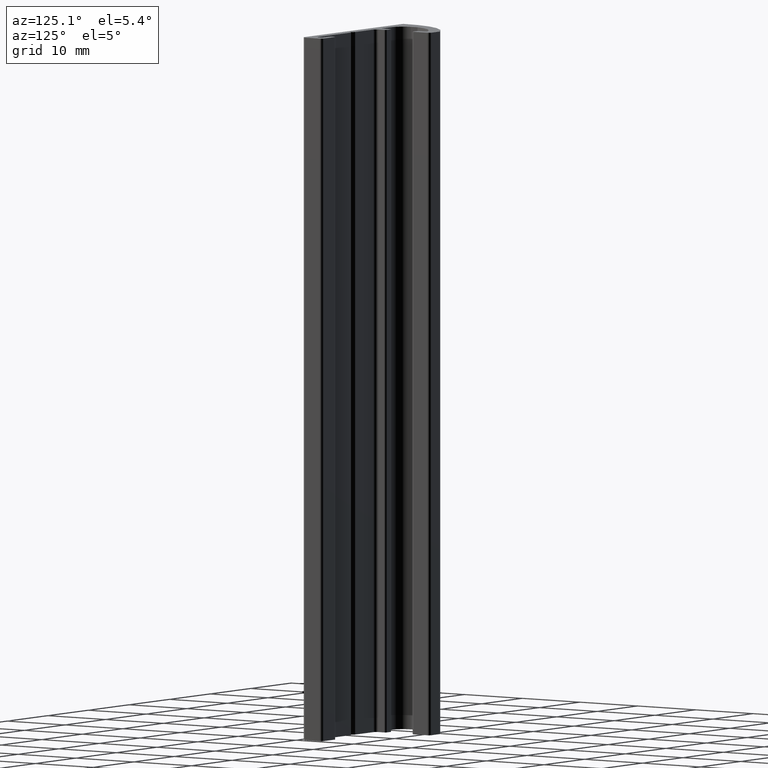
[diagram: clean part render]
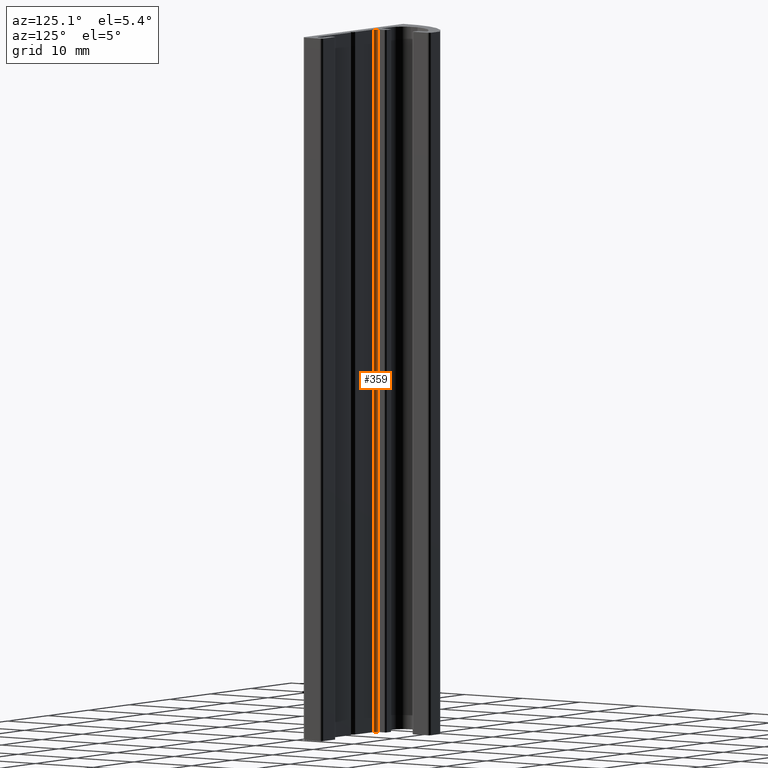
[diagram: same view with one face highlighted and labeled with its STEP entity id]
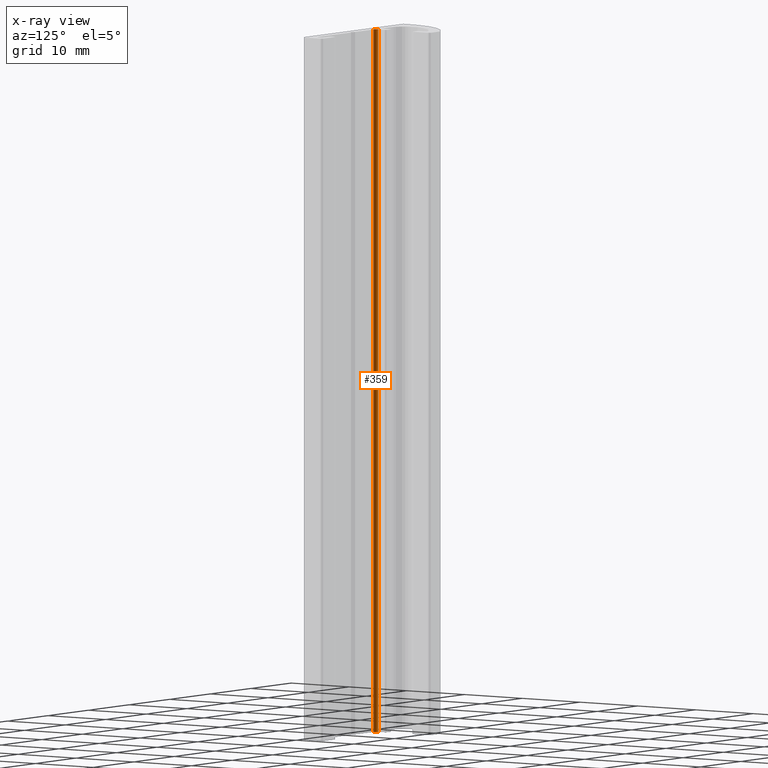
[diagram: x-ray of the same camera — body ghosted, the highlighted face saturated]
A machine part, auxiliary view. The second image highlights one B-rep face of the part: STEP entity #359.
The next image is the same camera in x-ray: the body ghosted, the highlighted face saturated — about 0% of this face is hidden behind the body in this view.
In plain terms, the highlighted cylindrical surface (edge-blend (fillet) strip) has radius 0.5 mm, axis along (0, 0, -1).
Its self-contained STEP definition (entity closure, byte-faithful):
#301=CARTESIAN_POINT('',(-2.755692566471907,1.499999999842089,0.0));
#302=VERTEX_POINT('',#301);
#309=CARTESIAN_POINT('',(-2.755692566471907,1.499999999842089,100.0));
#310=VERTEX_POINT('',#309);
#311=CARTESIAN_POINT('',(-2.755692566471907,1.499999999842089,0.0));
#312=DIRECTION('',(0.0,0.0,1.0));
#313=VECTOR('',#312,100.0);
#314=LINE('',#311,#313);
#315=EDGE_CURVE('',#302,#310,#314,.T.);
#327=CARTESIAN_POINT('',(-2.755692566471907,1.999999999792067,0.0));
#328=DIRECTION('',(0.0,0.0,-1.0));
#329=DIRECTION('',(-1.960054E-015,-1.0,0.0));
#330=AXIS2_PLACEMENT_3D('',#327,#328,#329);
#331=CYLINDRICAL_SURFACE('',#330,0.499999999950000);
#332=CARTESIAN_POINT('',(-3.255692566421885,1.999999999792067,0.0));
#333=VERTEX_POINT('',#332);
#334=CARTESIAN_POINT('',(-2.755692566471907,1.999999999792067,0.0));
#335=DIRECTION('',(0.0,0.0,-1.0));
#336=DIRECTION('',(1.0,0.0,0.0));
#337=AXIS2_PLACEMENT_3D('',#334,#335,#336);
#338=CIRCLE('',#337,0.499999999950000);
#339=EDGE_CURVE('',#302,#333,#338,.T.);
#340=ORIENTED_EDGE('',*,*,#339,.T.);
#341=CARTESIAN_POINT('',(-3.255692566421885,1.999999999792067,100.0));
#342=VERTEX_POINT('',#341);
#343=CARTESIAN_POINT('',(-3.255692566421885,1.999999999792067,0.0));
#344=DIRECTION('',(0.0,0.0,1.0));
#345=VECTOR('',#344,100.0);
#346=LINE('',#343,#345);
#347=EDGE_CURVE('',#333,#342,#346,.T.);
#348=ORIENTED_EDGE('',*,*,#347,.T.);
#349=CARTESIAN_POINT('',(-2.755692566471907,1.999999999792067,100.0));
#350=DIRECTION('',(0.0,0.0,-1.0));
#351=DIRECTION('',(1.0,0.0,0.0));
#352=AXIS2_PLACEMENT_3D('',#349,#350,#351);
#353=CIRCLE('',#352,0.499999999950000);
#354=EDGE_CURVE('',#310,#342,#353,.T.);
#355=ORIENTED_EDGE('',*,*,#354,.F.);
#356=ORIENTED_EDGE('',*,*,#315,.F.);
#357=EDGE_LOOP('',(#340,#348,#355,#356));
#358=FACE_OUTER_BOUND('',#357,.T.);
#359=ADVANCED_FACE('',(#358),#331,.F.);